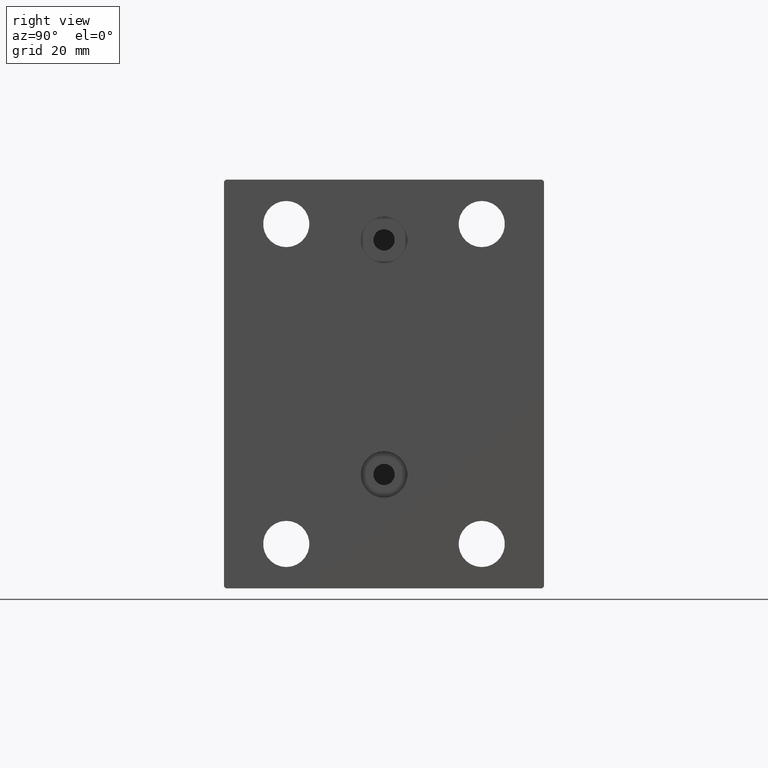
[diagram: clean part render]
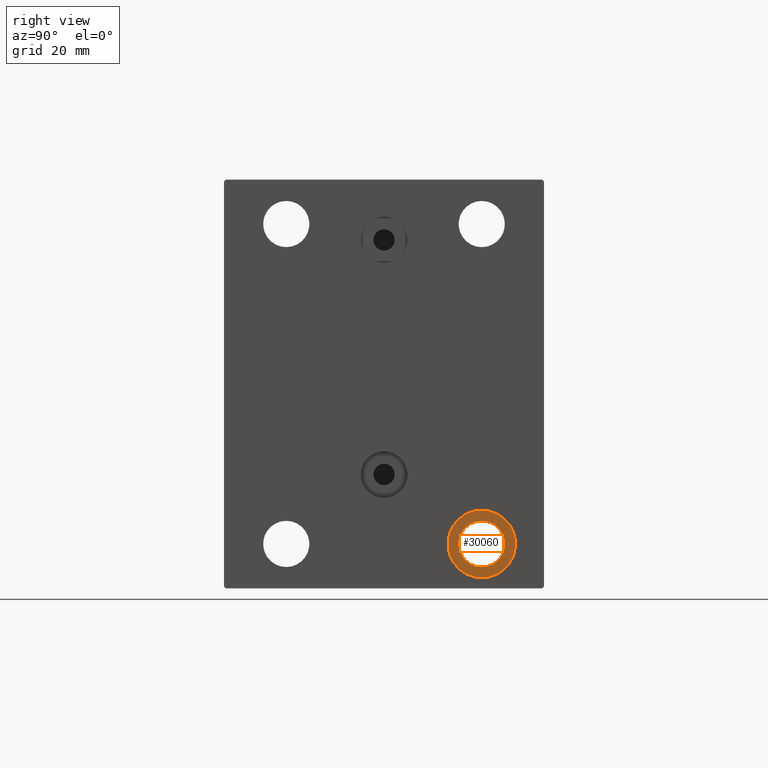
[diagram: same view with one face highlighted and labeled with its STEP entity id]
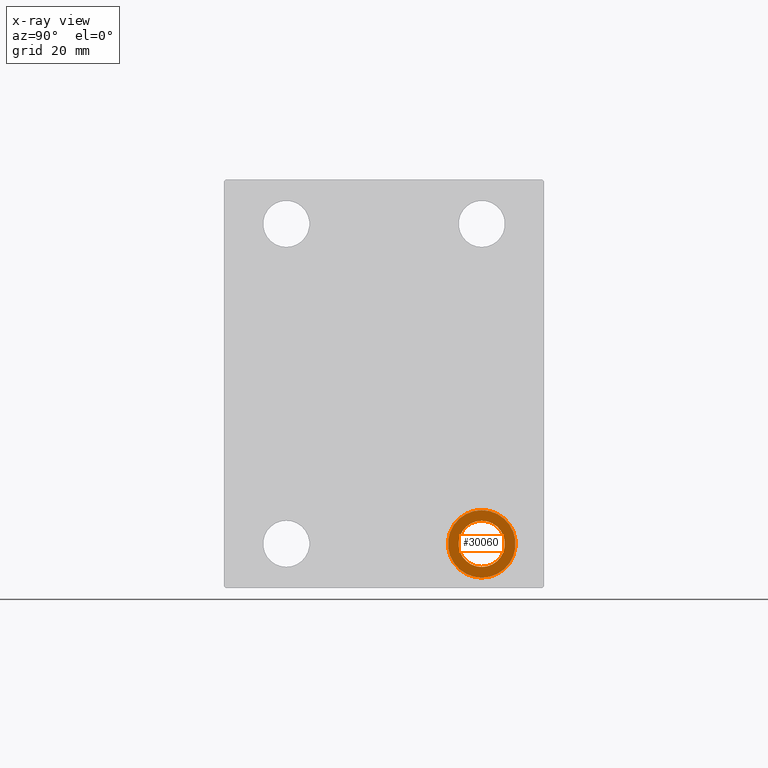
[diagram: x-ray of the same camera — body ghosted, the highlighted face saturated]
A machine part, right view. The second image highlights one B-rep face of the part: STEP entity #30060.
The next image is the same camera in x-ray: the body ghosted, the highlighted face saturated — about 0% of this face is hidden behind the body in this view.
In plain terms, the highlighted planar face has unit normal (1, 0, 0).
Its self-contained STEP definition (entity closure, byte-faithful):
#113 = FACE_OUTER_BOUND ( 'NONE', #26966, .T. ) ;
#1912 = CARTESIAN_POINT ( 'NONE',  ( 75.00000000000000000, 27.49999999999998934, -51.49999999999998579 ) ) ;
#2897 = ORIENTED_EDGE ( 'NONE', *, *, #12031, .F. ) ;
#3610 = CIRCLE ( 'NONE', #31513, 6.499999999999999112 ) ;
#3974 = VERTEX_POINT ( 'NONE', #18265 ) ;
#4898 = VERTEX_POINT ( 'NONE', #41489 ) ;
#5004 = DIRECTION ( 'NONE',  ( -1.000000000000000000, -0.000000000000000000, -0.000000000000000000 ) ) ;
#7255 = DIRECTION ( 'NONE',  ( 0.000000000000000000, 0.000000000000000000, 1.000000000000000000 ) ) ;
#7481 = ORIENTED_EDGE ( 'NONE', *, *, #16474, .F. ) ;
#8351 = CIRCLE ( 'NONE', #34045, 9.500000000000001776 ) ;
#10420 = AXIS2_PLACEMENT_3D ( 'NONE', #43858, #5004, #12825 ) ;
#12031 = EDGE_CURVE ( 'NONE', #34506, #4898, #22949, .T. ) ;
#12397 = ORIENTED_EDGE ( 'NONE', *, *, #45116, .T. ) ;
#12825 = DIRECTION ( 'NONE',  ( 0.000000000000000000, 0.000000000000000000, 1.000000000000000000 ) ) ;
#13476 = CIRCLE ( 'NONE', #35472, 6.499999999999999112 ) ;
#14265 = DIRECTION ( 'NONE',  ( -1.000000000000000000, -0.000000000000000000, -0.000000000000000000 ) ) ;
#15328 = EDGE_CURVE ( 'NONE', #32728, #3974, #13476, .T. ) ;
#15807 = CARTESIAN_POINT ( 'NONE',  ( 75.00000000000000000, 27.49999999999998934, -54.49999999999998579 ) ) ;
#16474 = EDGE_CURVE ( 'NONE', #4898, #34506, #8351, .T. ) ;
#17617 = DIRECTION ( 'NONE',  ( 0.000000000000000000, 0.000000000000000000, -1.000000000000000000 ) ) ;
#18075 = FACE_BOUND ( 'NONE', #35868, .T. ) ;
#18265 = CARTESIAN_POINT ( 'NONE',  ( 75.00000000000000000, 27.49999999999998934, -38.49999999999998579 ) ) ;
#20338 = ORIENTED_EDGE ( 'NONE', *, *, #15328, .T. ) ;
#21400 = CARTESIAN_POINT ( 'NONE',  ( 75.00000000000000000, 27.49999999999998934, -44.99999999999998579 ) ) ;
#22949 = CIRCLE ( 'NONE', #10420, 9.500000000000001776 ) ;
#25076 = DIRECTION ( 'NONE',  ( 0.000000000000000000, 0.000000000000000000, -1.000000000000000000 ) ) ;
#26966 = EDGE_LOOP ( 'NONE', ( #2897, #7481 ) ) ;
#28200 = PLANE ( 'NONE',  #36430 ) ;
#29300 = CARTESIAN_POINT ( 'NONE',  ( 75.00000000000000000, 27.49999999999998934, -44.99999999999998579 ) ) ;
#30060 = ADVANCED_FACE ( 'NONE', ( #113, #18075 ), #28200, .T. ) ;
#31513 = AXIS2_PLACEMENT_3D ( 'NONE', #21400, #14265, #25076 ) ;
#32506 = DIRECTION ( 'NONE',  ( -1.000000000000000000, -0.000000000000000000, -0.000000000000000000 ) ) ;
#32728 = VERTEX_POINT ( 'NONE', #1912 ) ;
#32952 = DIRECTION ( 'NONE',  ( -1.000000000000000000, -0.000000000000000000, -0.000000000000000000 ) ) ;
#33200 = DIRECTION ( 'NONE',  ( 0.000000000000000000, 0.000000000000000000, 1.000000000000000000 ) ) ;
#34045 = AXIS2_PLACEMENT_3D ( 'NONE', #29300, #32506, #33200 ) ;
#34506 = VERTEX_POINT ( 'NONE', #15807 ) ;
#35303 = DIRECTION ( 'NONE',  ( 1.000000000000000000, 0.000000000000000000, -0.000000000000000000 ) ) ;
#35472 = AXIS2_PLACEMENT_3D ( 'NONE', #42428, #32952, #17617 ) ;
#35868 = EDGE_LOOP ( 'NONE', ( #12397, #20338 ) ) ;
#36430 = AXIS2_PLACEMENT_3D ( 'NONE', #38747, #35303, #7255 ) ;
#38747 = CARTESIAN_POINT ( 'NONE',  ( 75.00000000000000000, 27.49999999999998934, -44.99999999999998579 ) ) ;
#41489 = CARTESIAN_POINT ( 'NONE',  ( 75.00000000000000000, 27.49999999999998934, -35.49999999999998579 ) ) ;
#42428 = CARTESIAN_POINT ( 'NONE',  ( 75.00000000000000000, 27.49999999999998934, -44.99999999999998579 ) ) ;
#43858 = CARTESIAN_POINT ( 'NONE',  ( 75.00000000000000000, 27.49999999999998934, -44.99999999999998579 ) ) ;
#45116 = EDGE_CURVE ( 'NONE', #3974, #32728, #3610, .T. ) ;